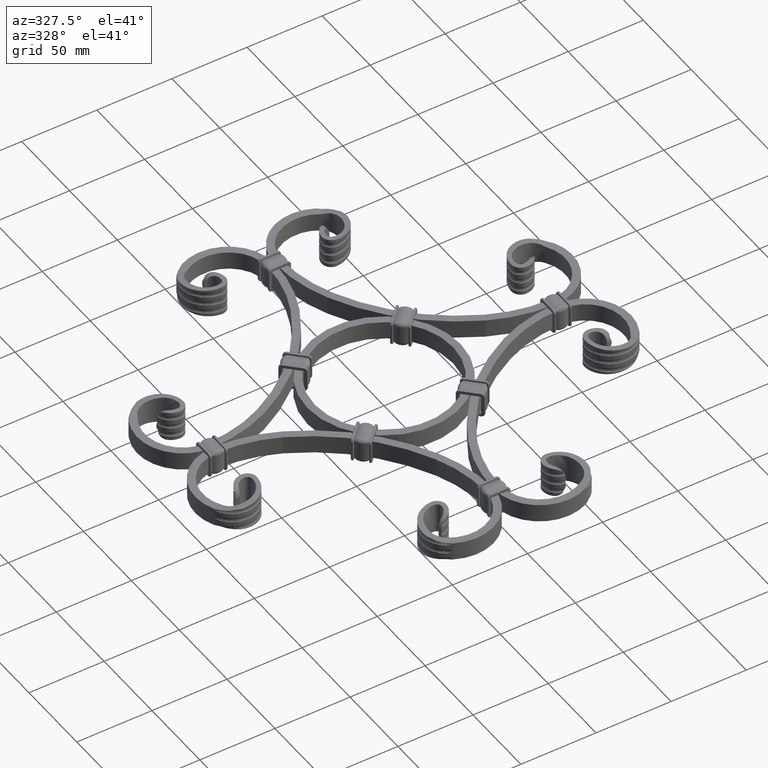
[diagram: clean part render]
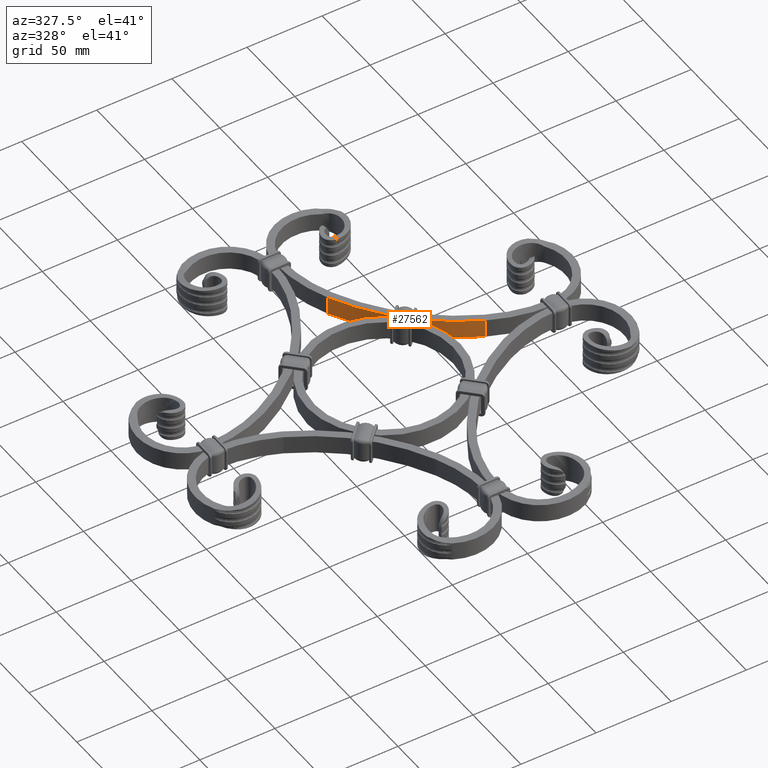
[diagram: same view with one face highlighted and labeled with its STEP entity id]
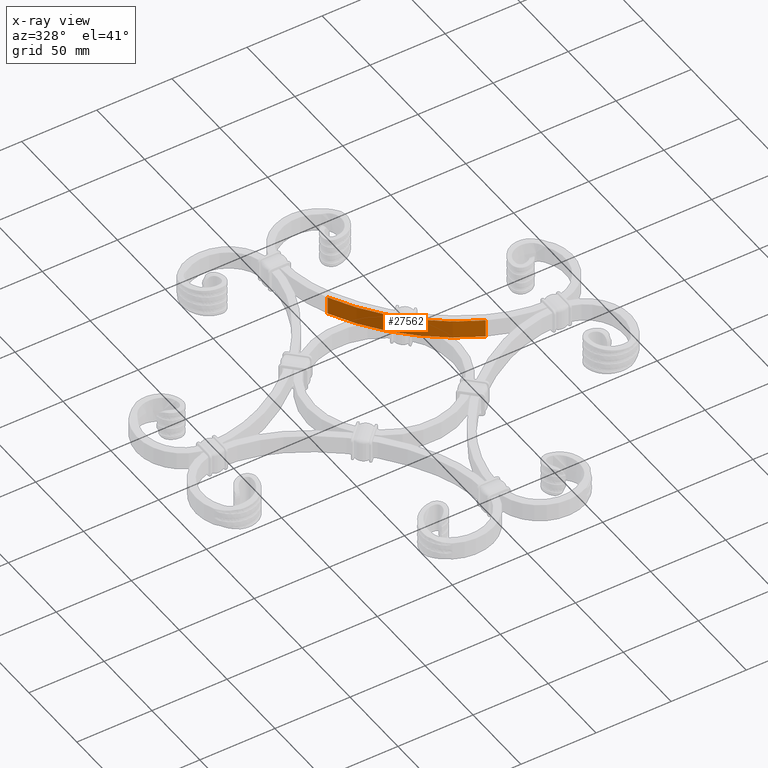
[diagram: x-ray of the same camera — body ghosted, the highlighted face saturated]
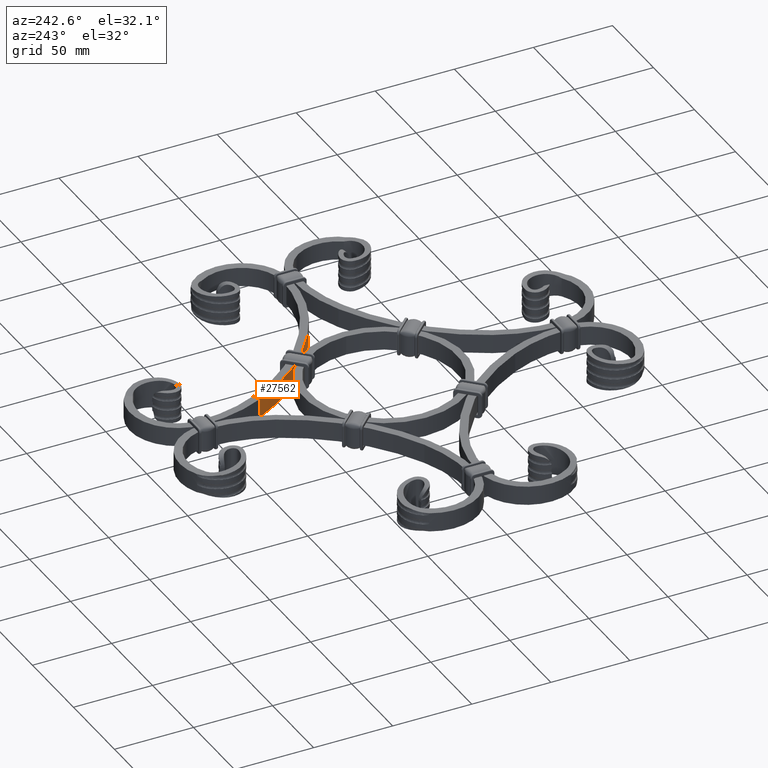
[diagram: same view with one face highlighted and labeled with its STEP entity id]
A machine part, auxiliary view. The second image highlights one B-rep face of the part: STEP entity #27562.
The next image is the same camera in x-ray: the body ghosted, the highlighted face saturated — about 0% of this face is hidden behind the body in this view.
A second angle (auxiliary view) of the same face is appended — the face is thin or edge-on in the first view.
In plain terms, the highlighted cylindrical surface (partial cylindrical patch) has radius 138.179 mm, axis along (0, 0, 1).
Its self-contained STEP definition (entity closure, byte-faithful):
#2273 = DIRECTION ( 'NONE',  ( 0.000000000000000000, 0.000000000000000000, 1.000000000000000000 ) ) ;
#2480 = VERTEX_POINT ( 'NONE', #41005 ) ;
#6673 = EDGE_CURVE ( 'NONE', #2480, #46716, #39671, .T. ) ;
#8861 = CARTESIAN_POINT ( 'NONE',  ( 9.381487006249189520, 73.59507978403622985, 6.000000000000000000 ) ) ;
#9961 = VECTOR ( 'NONE', #48154, 1000.000000000000000 ) ;
#12034 = ORIENTED_EDGE ( 'NONE', *, *, #6673, .T. ) ;
#13355 = CIRCLE ( 'NONE', #59181, 138.1787558030673324 ) ;
#14430 = CARTESIAN_POINT ( 'NONE',  ( 9.381487006249196625, 73.59507978403622985, -6.000000000000000000 ) ) ;
#15729 = ORIENTED_EDGE ( 'NONE', *, *, #53439, .F. ) ;
#17795 = DIRECTION ( 'NONE',  ( -1.000000000000000000, 0.000000000000000000, 0.000000000000000000 ) ) ;
#18432 = DIRECTION ( 'NONE',  ( 0.000000000000000000, -0.000000000000000000, 1.000000000000000000 ) ) ;
#20981 = CYLINDRICAL_SURFACE ( 'NONE', #57437, 138.1787558030673324 ) ;
#23198 = ORIENTED_EDGE ( 'NONE', *, *, #25672, .T. ) ;
#23469 = EDGE_CURVE ( 'NONE', #29574, #46716, #13355, .T. ) ;
#24648 = DIRECTION ( 'NONE',  ( 0.000000000000000000, -0.000000000000000000, 1.000000000000000000 ) ) ;
#25168 = AXIS2_PLACEMENT_3D ( 'NONE', #32605, #18432, #32404 ) ;
#25672 = EDGE_CURVE ( 'NONE', #51387, #2480, #26909, .T. ) ;
#25930 = ORIENTED_EDGE ( 'NONE', *, *, #23469, .F. ) ;
#26909 = CIRCLE ( 'NONE', #25168, 138.1787558030673324 ) ;
#27562 = ADVANCED_FACE ( 'NONE', ( #31871 ), #20981, .T. ) ;
#28382 = VECTOR ( 'NONE', #32276, 1000.000000000000000 ) ;
#29574 = VERTEX_POINT ( 'NONE', #8861 ) ;
#31871 = FACE_OUTER_BOUND ( 'NONE', #32378, .T. ) ;
#32276 = DIRECTION ( 'NONE',  ( 0.000000000000000000, 0.000000000000000000, 1.000000000000000000 ) ) ;
#32378 = EDGE_LOOP ( 'NONE', ( #25930, #15729, #23198, #12034 ) ) ;
#32404 = DIRECTION ( 'NONE',  ( -0.9001969467420303239, -0.4354830158299245468, 0.000000000000000000 ) ) ;
#32605 = CARTESIAN_POINT ( 'NONE',  ( 133.7695810847829989, 133.7695810847827147, -6.000000000000000000 ) ) ;
#35682 = CARTESIAN_POINT ( 'NONE',  ( 9.381487006249189520, 73.59507978403622985, -6.000000000000000000 ) ) ;
#39193 = DIRECTION ( 'NONE',  ( -0.9001969467420303239, -0.4354830158299245468, 0.000000000000000000 ) ) ;
#39671 = LINE ( 'NONE', #53407, #9961 ) ;
#40681 = LINE ( 'NONE', #14430, #28382 ) ;
#41005 = CARTESIAN_POINT ( 'NONE',  ( 73.59507978403630091, 9.381487006248601546, -6.000000000000000000 ) ) ;
#44734 = CARTESIAN_POINT ( 'NONE',  ( 133.7695810847829989, 133.7695810847827147, 0.000000000000000000 ) ) ;
#46716 = VERTEX_POINT ( 'NONE', #53695 ) ;
#48154 = DIRECTION ( 'NONE',  ( 0.000000000000000000, 0.000000000000000000, 1.000000000000000000 ) ) ;
#51387 = VERTEX_POINT ( 'NONE', #35682 ) ;
#52790 = CARTESIAN_POINT ( 'NONE',  ( 133.7695810847829989, 133.7695810847827147, 6.000000000000000000 ) ) ;
#53407 = CARTESIAN_POINT ( 'NONE',  ( 73.59507978403630091, 9.381487006248608651, -6.000000000000000000 ) ) ;
#53439 = EDGE_CURVE ( 'NONE', #51387, #29574, #40681, .T. ) ;
#53695 = CARTESIAN_POINT ( 'NONE',  ( 73.59507978403630091, 9.381487006248601546, 6.000000000000000000 ) ) ;
#57437 = AXIS2_PLACEMENT_3D ( 'NONE', #44734, #2273, #17795 ) ;
#59181 = AXIS2_PLACEMENT_3D ( 'NONE', #52790, #24648, #39193 ) ;